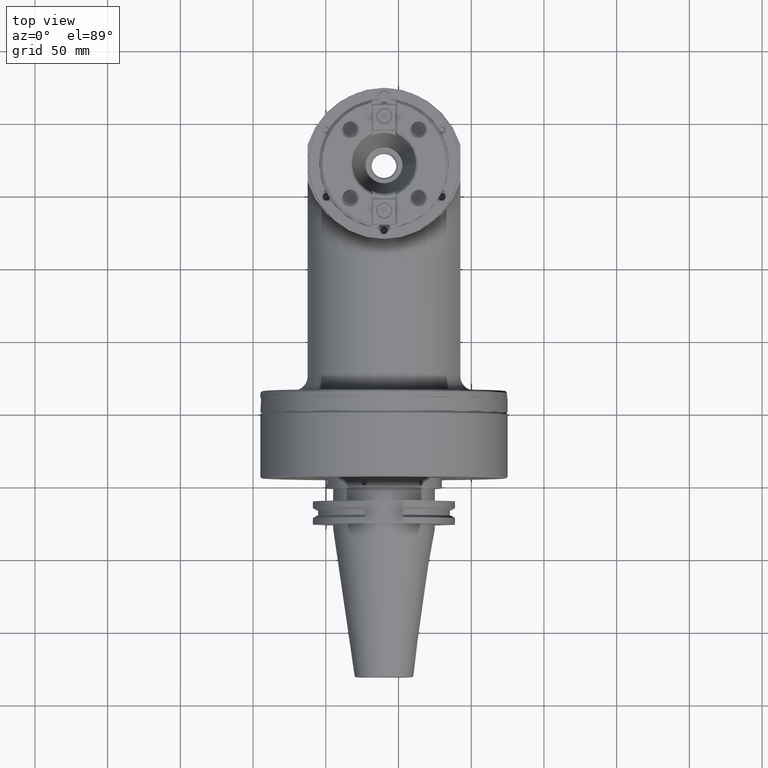
[diagram: clean part render]
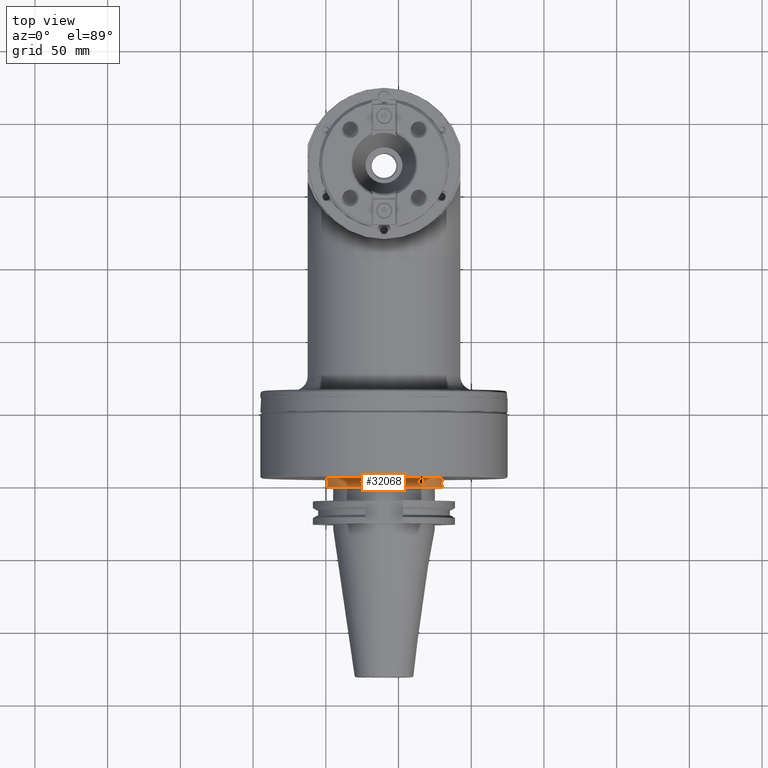
[diagram: same view with one face highlighted and labeled with its STEP entity id]
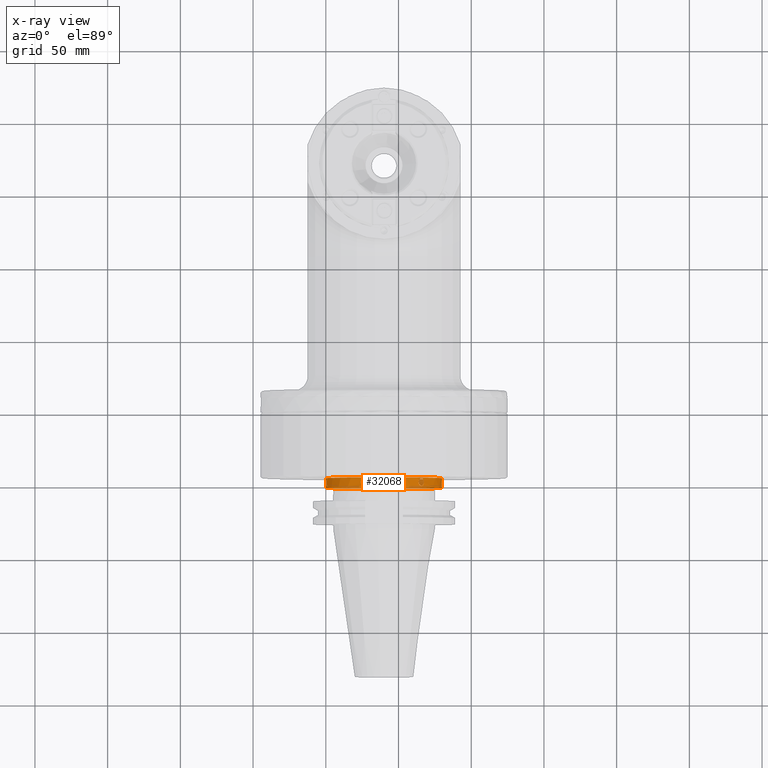
[diagram: x-ray of the same camera — body ghosted, the highlighted face saturated]
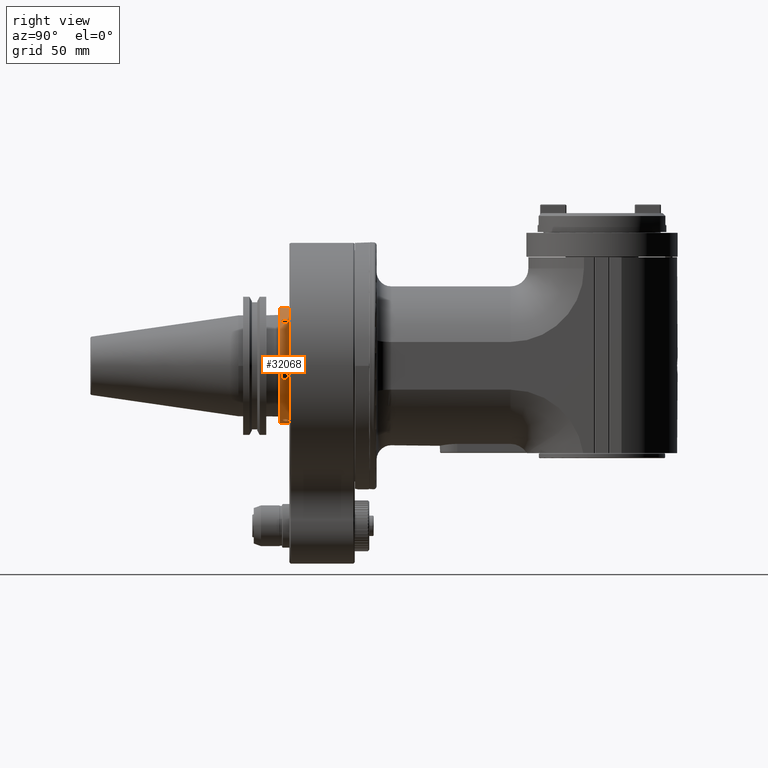
[diagram: same view with one face highlighted and labeled with its STEP entity id]
A machine part, top view. The second image highlights one B-rep face of the part: STEP entity #32068.
The next image is the same camera in x-ray: the body ghosted, the highlighted face saturated — about 16% of this face is hidden behind the body in this view.
A second angle (right view) of the same face is appended — the face is thin or edge-on in the first view.
In plain terms, the highlighted cylindrical surface (bore or boss wall) has radius 40 mm, axis along (-0, 1, -0).
Its self-contained STEP definition (entity closure, byte-faithful):
#568=B_SPLINE_CURVE_WITH_KNOTS('',3,(#63098,#63099,#63100,#63101,#63102,
#63103,#63104,#63105,#63106,#63107,#63108,#63109,#63110,#63111,#63112,#63113,
#63114,#63115),.UNSPECIFIED.,.F.,.F.,(4,2,2,2,2,2,2,2,4),(-0.742491984720188,
-0.649998053057273,-0.557504121394359,-0.464375056877228,-0.371245992360097,
-0.278116927842965,-0.184987863325834,-0.0924939316629168,0.),
 .UNSPECIFIED.);
#569=B_SPLINE_CURVE_WITH_KNOTS('',3,(#63116,#63117,#63118,#63119,#63120,
#63121,#63122,#63123,#63124,#63125,#63126,#63127,#63128,#63129,#63130,#63131,
#63132,#63133),.UNSPECIFIED.,.F.,.F.,(4,2,2,2,2,2,2,2,4),(0.,0.092493931662917,
0.184987863325834,0.278116927842966,0.371245992360097,0.464375056877228,
0.557504121394359,0.649998053057273,0.742491984720188),.UNSPECIFIED.);
#570=B_SPLINE_CURVE_WITH_KNOTS('',3,(#63136,#63137,#63138,#63139,#63140,
#63141,#63142,#63143,#63144,#63145,#63146,#63147,#63148,#63149,#63150,#63151,
#63152,#63153),.UNSPECIFIED.,.F.,.F.,(4,2,2,2,2,2,2,2,4),(-0.742491984721139,
-0.649998053058096,-0.557504121395052,-0.464375056877798,-0.371245992360543,
-0.278116927843296,-0.184987863326049,-0.0924939316630244,0.),
 .UNSPECIFIED.);
#571=B_SPLINE_CURVE_WITH_KNOTS('',3,(#63154,#63155,#63156,#63157,#63158,
#63159,#63160,#63161,#63162,#63163,#63164,#63165,#63166,#63167,#63168,#63169,
#63170,#63171),.UNSPECIFIED.,.F.,.F.,(4,2,2,2,2,2,2,2,4),(0.,0.0924939316630244,
0.184987863326049,0.278116927843296,0.371245992360543,0.464375056877797,
0.557504121395052,0.649998053058095,0.742491984721138),.UNSPECIFIED.);
#572=B_SPLINE_CURVE_WITH_KNOTS('',3,(#63174,#63175,#63176,#63177,#63178,
#63179,#63180,#63181,#63182,#63183,#63184,#63185,#63186,#63187,#63188,#63189,
#63190,#63191),.UNSPECIFIED.,.F.,.F.,(4,2,2,2,2,2,2,2,4),(-0.742491984721315,
-0.649998053058266,-0.557504121395217,-0.464375056877946,-0.371245992360675,
-0.2781169278434,-0.184987863326125,-0.0924939316630624,0.),
 .UNSPECIFIED.);
#573=B_SPLINE_CURVE_WITH_KNOTS('',3,(#63192,#63193,#63194,#63195,#63196,
#63197,#63198,#63199,#63200,#63201,#63202,#63203,#63204,#63205,#63206,#63207,
#63208,#63209),.UNSPECIFIED.,.F.,.F.,(4,2,2,2,2,2,2,2,4),(0.,0.0924939316630617,
0.184987863326124,0.278116927843399,0.371245992360674,0.464375056877945,
0.557504121395216,0.649998053058265,0.742491984721315),.UNSPECIFIED.);
#574=B_SPLINE_CURVE_WITH_KNOTS('',3,(#63212,#63213,#63214,#63215,#63216,
#63217,#63218,#63219,#63220,#63221,#63222,#63223,#63224,#63225,#63226,#63227,
#63228,#63229),.UNSPECIFIED.,.F.,.F.,(4,2,2,2,2,2,2,2,4),(-0.742491984720188,
-0.649998053057273,-0.557504121394359,-0.464375056877228,-0.371245992360097,
-0.278116927842965,-0.184987863325834,-0.0924939316629168,0.),
 .UNSPECIFIED.);
#575=B_SPLINE_CURVE_WITH_KNOTS('',3,(#63230,#63231,#63232,#63233,#63234,
#63235,#63236,#63237,#63238,#63239,#63240,#63241,#63242,#63243,#63244,#63245,
#63246,#63247),.UNSPECIFIED.,.F.,.F.,(4,2,2,2,2,2,2,2,4),(0.,0.092493931662917,
0.184987863325834,0.278116927842966,0.371245992360097,0.464375056877228,
0.557504121394359,0.649998053057273,0.742491984720188),.UNSPECIFIED.);
#576=B_SPLINE_CURVE_WITH_KNOTS('',3,(#63250,#63251,#63252,#63253,#63254,
#63255,#63256,#63257,#63258,#63259,#63260,#63261,#63262,#63263,#63264,#63265,
#63266,#63267),.UNSPECIFIED.,.F.,.F.,(4,2,2,2,2,2,2,2,4),(-0.742491984721315,
-0.649998053058266,-0.557504121395217,-0.464375056877946,-0.371245992360675,
-0.2781169278434,-0.184987863326125,-0.0924939316630624,0.),
 .UNSPECIFIED.);
#577=B_SPLINE_CURVE_WITH_KNOTS('',3,(#63268,#63269,#63270,#63271,#63272,
#63273,#63274,#63275,#63276,#63277,#63278,#63279,#63280,#63281,#63282,#63283,
#63284,#63285),.UNSPECIFIED.,.F.,.F.,(4,2,2,2,2,2,2,2,4),(0.,0.0924939316630617,
0.184987863326124,0.278116927843399,0.371245992360674,0.464375056877945,
0.557504121395216,0.649998053058265,0.742491984721315),.UNSPECIFIED.);
#578=B_SPLINE_CURVE_WITH_KNOTS('',3,(#63288,#63289,#63290,#63291,#63292,
#63293,#63294,#63295,#63296,#63297,#63298,#63299,#63300,#63301,#63302,#63303,
#63304,#63305),.UNSPECIFIED.,.F.,.F.,(4,2,2,2,2,2,2,2,4),(-0.742491984721139,
-0.649998053058096,-0.557504121395052,-0.464375056877798,-0.371245992360543,
-0.278116927843296,-0.184987863326049,-0.0924939316630244,0.),
 .UNSPECIFIED.);
#579=B_SPLINE_CURVE_WITH_KNOTS('',3,(#63306,#63307,#63308,#63309,#63310,
#63311,#63312,#63313,#63314,#63315,#63316,#63317,#63318,#63319,#63320,#63321,
#63322,#63323),.UNSPECIFIED.,.F.,.F.,(4,2,2,2,2,2,2,2,4),(0.,0.0924939316630244,
0.184987863326049,0.278116927843296,0.371245992360543,0.464375056877797,
0.557504121395052,0.649998053058095,0.742491984721138),.UNSPECIFIED.);
#914=CYLINDRICAL_SURFACE('',#35114,40.);
#1543=FACE_BOUND('',#10921,.T.);
#1544=FACE_BOUND('',#10922,.T.);
#1545=FACE_BOUND('',#10923,.T.);
#1546=FACE_BOUND('',#10924,.T.);
#1547=FACE_BOUND('',#10925,.T.);
#1548=FACE_BOUND('',#10926,.T.);
#4171=LINE('',#63092,#7082);
#7082=VECTOR('',#43506,40.);
#8900=FACE_OUTER_BOUND('',#10920,.T.);
#10920=EDGE_LOOP('',(#28285,#28286,#28287,#28288,#28289));
#10921=EDGE_LOOP('',(#28290,#28291));
#10922=EDGE_LOOP('',(#28292,#28293));
#10923=EDGE_LOOP('',(#28294,#28295));
#10924=EDGE_LOOP('',(#28296,#28297));
#10925=EDGE_LOOP('',(#28298,#28299));
#10926=EDGE_LOOP('',(#28300,#28301));
#12421=CIRCLE('',#35102,40.);
#12427=CIRCLE('',#35115,40.);
#12428=CIRCLE('',#35116,40.);
#15395=VERTEX_POINT('',#63062);
#15400=VERTEX_POINT('',#63091);
#15401=VERTEX_POINT('',#63093);
#15402=VERTEX_POINT('',#63096);
#15403=VERTEX_POINT('',#63097);
#15404=VERTEX_POINT('',#63134);
#15405=VERTEX_POINT('',#63135);
#15406=VERTEX_POINT('',#63172);
#15407=VERTEX_POINT('',#63173);
#15408=VERTEX_POINT('',#63210);
#15409=VERTEX_POINT('',#63211);
#15410=VERTEX_POINT('',#63248);
#15411=VERTEX_POINT('',#63249);
#15412=VERTEX_POINT('',#63286);
#15413=VERTEX_POINT('',#63287);
#19784=EDGE_CURVE('',#15395,#15395,#12421,.T.);
#19793=EDGE_CURVE('',#15395,#15400,#4171,.T.);
#19794=EDGE_CURVE('',#15400,#15401,#12427,.T.);
#19795=EDGE_CURVE('',#15401,#15400,#12428,.T.);
#19796=EDGE_CURVE('',#15402,#15403,#568,.T.);
#19797=EDGE_CURVE('',#15403,#15402,#569,.T.);
#19798=EDGE_CURVE('',#15404,#15405,#570,.T.);
#19799=EDGE_CURVE('',#15405,#15404,#571,.T.);
#19800=EDGE_CURVE('',#15406,#15407,#572,.T.);
#19801=EDGE_CURVE('',#15407,#15406,#573,.T.);
#19802=EDGE_CURVE('',#15408,#15409,#574,.T.);
#19803=EDGE_CURVE('',#15409,#15408,#575,.T.);
#19804=EDGE_CURVE('',#15410,#15411,#576,.T.);
#19805=EDGE_CURVE('',#15411,#15410,#577,.T.);
#19806=EDGE_CURVE('',#15412,#15413,#578,.T.);
#19807=EDGE_CURVE('',#15413,#15412,#579,.T.);
#28285=ORIENTED_EDGE('',*,*,#19784,.F.);
#28286=ORIENTED_EDGE('',*,*,#19793,.T.);
#28287=ORIENTED_EDGE('',*,*,#19794,.T.);
#28288=ORIENTED_EDGE('',*,*,#19795,.T.);
#28289=ORIENTED_EDGE('',*,*,#19793,.F.);
#28290=ORIENTED_EDGE('',*,*,#19796,.F.);
#28291=ORIENTED_EDGE('',*,*,#19797,.F.);
#28292=ORIENTED_EDGE('',*,*,#19798,.F.);
#28293=ORIENTED_EDGE('',*,*,#19799,.F.);
#28294=ORIENTED_EDGE('',*,*,#19800,.F.);
#28295=ORIENTED_EDGE('',*,*,#19801,.F.);
#28296=ORIENTED_EDGE('',*,*,#19802,.F.);
#28297=ORIENTED_EDGE('',*,*,#19803,.F.);
#28298=ORIENTED_EDGE('',*,*,#19804,.F.);
#28299=ORIENTED_EDGE('',*,*,#19805,.F.);
#28300=ORIENTED_EDGE('',*,*,#19806,.F.);
#28301=ORIENTED_EDGE('',*,*,#19807,.F.);
#32068=ADVANCED_FACE('',(#8900,#1543,#1544,#1545,#1546,#1547,#1548),#914,
 .T.);
#35102=AXIS2_PLACEMENT_3D('',#63063,#43479,#43480);
#35114=AXIS2_PLACEMENT_3D('',#63090,#43504,#43505);
#35115=AXIS2_PLACEMENT_3D('',#63094,#43507,#43508);
#35116=AXIS2_PLACEMENT_3D('',#63095,#43509,#43510);
#43479=DIRECTION('center_axis',(0.,1.,0.));
#43480=DIRECTION('ref_axis',(1.,0.,0.));
#43504=DIRECTION('center_axis',(0.,1.,0.));
#43505=DIRECTION('ref_axis',(1.,0.,0.));
#43506=DIRECTION('',(0.,-1.,0.));
#43507=DIRECTION('center_axis',(0.,1.,0.));
#43508=DIRECTION('ref_axis',(1.,0.,0.));
#43509=DIRECTION('center_axis',(0.,1.,0.));
#43510=DIRECTION('ref_axis',(1.,0.,0.));
#63062=CARTESIAN_POINT('',(-40.,-45.,4.89858719658941E-15));
#63063=CARTESIAN_POINT('Origin',(0.,-45.,0.));
#63090=CARTESIAN_POINT('Origin',(0.,-52.95,0.));
#63091=CARTESIAN_POINT('',(-40.,-51.60002084394,4.89858719658941E-15));
#63092=CARTESIAN_POINT('',(-40.,-52.95,4.89858719658941E-15));
#63093=CARTESIAN_POINT('',(2.51836680647089E-13,-51.6000208439394,39.9999999999999));
#63094=CARTESIAN_POINT('Origin',(0.,-51.60002084394,0.));
#63095=CARTESIAN_POINT('Origin',(0.,-51.60002084394,0.));
#63096=CARTESIAN_POINT('',(-38.89844204083,-48.1,9.322618022667));
#63097=CARTESIAN_POINT('',(-39.7411020981145,-48.1,4.54365535964566));
#63098=CARTESIAN_POINT('Ctrl Pts',(-38.8984420408263,-48.1,9.32261802266267));
#63099=CARTESIAN_POINT('Ctrl Pts',(-38.8984420408263,-47.791686894457,9.32261802266267));
#63100=CARTESIAN_POINT('Ctrl Pts',(-38.9122969841361,-47.4618745273723,
9.26540609676041));
#63101=CARTESIAN_POINT('Ctrl Pts',(-38.9675764213949,-46.8518373755174,
9.0300938509991));
#63102=CARTESIAN_POINT('Ctrl Pts',(-39.0088281459365,-46.5716224878712,
8.85192732282894));
#63103=CARTESIAN_POINT('Ctrl Pts',(-39.1011245134172,-46.1239232905301,
8.43492599664727));
#63104=CARTESIAN_POINT('Ctrl Pts',(-39.1584458036527,-45.9272221075732,
8.16744430163333));
#63105=CARTESIAN_POINT('Ctrl Pts',(-39.277190395584,-45.6652237176588,7.57583915579677));
#63106=CARTESIAN_POINT('Ctrl Pts',(-39.338404479351,-45.6000000000041,7.25164118923415));
#63107=CARTESIAN_POINT('Ctrl Pts',(-39.4462157616258,-45.6000000000041,
6.64021302411918));
#63108=CARTESIAN_POINT('Ctrl Pts',(-39.4995755738114,-45.6652237176588,
6.31463013756295));
#63109=CARTESIAN_POINT('Ctrl Pts',(-39.5903330337865,-45.9272221075731,
5.71809010524986));
#63110=CARTESIAN_POINT('Ctrl Pts',(-39.627952768004,-46.12392329053,5.44713449434798));
#63111=CARTESIAN_POINT('Ctrl Pts',(-39.6838454059047,-46.5716224878712,
5.02371420844293));
#63112=CARTESIAN_POINT('Ctrl Pts',(-39.7060180062588,-46.8518373755174,
4.84218351591022));
#63113=CARTESIAN_POINT('Ctrl Pts',(-39.7345538550071,-47.4618745273724,
4.60215565393356));
#63114=CARTESIAN_POINT('Ctrl Pts',(-39.7411020981145,-47.791686894457,4.54365535964566));
#63115=CARTESIAN_POINT('Ctrl Pts',(-39.7411020981145,-48.1,4.54365535964566));
#63116=CARTESIAN_POINT('Ctrl Pts',(-39.7411020981145,-48.1,4.54365535964565));
#63117=CARTESIAN_POINT('Ctrl Pts',(-39.7411020981145,-48.4083131055431,
4.54365535964565));
#63118=CARTESIAN_POINT('Ctrl Pts',(-39.7345538550071,-48.7381254726277,
4.60215565393356));
#63119=CARTESIAN_POINT('Ctrl Pts',(-39.7060180062588,-49.3481626244827,
4.84218351591021));
#63120=CARTESIAN_POINT('Ctrl Pts',(-39.6838454059047,-49.6283775121289,
5.02371420844293));
#63121=CARTESIAN_POINT('Ctrl Pts',(-39.627952768004,-50.07607670947,5.44713449434798));
#63122=CARTESIAN_POINT('Ctrl Pts',(-39.5903330337865,-50.2727778924269,
5.71809010524986));
#63123=CARTESIAN_POINT('Ctrl Pts',(-39.4995755738114,-50.5347762823412,
6.31463013756296));
#63124=CARTESIAN_POINT('Ctrl Pts',(-39.4462157616258,-50.5999999999959,
6.64021302411919));
#63125=CARTESIAN_POINT('Ctrl Pts',(-39.338404479351,-50.5999999999959,7.25164118923415));
#63126=CARTESIAN_POINT('Ctrl Pts',(-39.277190395584,-50.5347762823412,7.57583915579677));
#63127=CARTESIAN_POINT('Ctrl Pts',(-39.1584458036527,-50.2727778924269,
8.16744430163333));
#63128=CARTESIAN_POINT('Ctrl Pts',(-39.1011245134172,-50.07607670947,8.43492599664727));
#63129=CARTESIAN_POINT('Ctrl Pts',(-39.0088281459365,-49.6283775121288,
8.85192732282894));
#63130=CARTESIAN_POINT('Ctrl Pts',(-38.9675764213949,-49.3481626244826,
9.03009385099911));
#63131=CARTESIAN_POINT('Ctrl Pts',(-38.9122969841361,-48.7381254726276,
9.2654060967604));
#63132=CARTESIAN_POINT('Ctrl Pts',(-38.8984420408263,-48.4083131055431,
9.32261802266266));
#63133=CARTESIAN_POINT('Ctrl Pts',(-38.8984420408263,-48.1,9.32261802266266));
#63134=CARTESIAN_POINT('',(27.52284505782,-48.1,29.02572996366));
#63135=CARTESIAN_POINT('',(23.8054720165449,-48.1,32.1449763115405));
#63136=CARTESIAN_POINT('Ctrl Pts',(27.522845057816,-48.1,29.0257299636625));
#63137=CARTESIAN_POINT('Ctrl Pts',(27.522845057816,-47.7916868944565,29.0257299636625));
#63138=CARTESIAN_POINT('Ctrl Pts',(27.48022554824,-47.4618745273714,29.066334659488));
#63139=CARTESIAN_POINT('Ctrl Pts',(27.3040788842182,-46.8518373755156,29.2318641793418));
#63140=CARTESIAN_POINT('Ctrl Pts',(27.1704080069894,-46.5716224878691,29.3566724848301));
#63141=CARTESIAN_POINT('Ctrl Pts',(26.8554224488442,-46.1239232905273,29.6451041468366));
#63142=CARTESIAN_POINT('Ctrl Pts',(26.6524371510322,-45.9272221075702,29.8284866878654));
#63143=CARTESIAN_POINT('Ctrl Pts',(26.1994643616932,-45.6652237176556,30.2271250939587));
#63144=CARTESIAN_POINT('Ctrl Pts',(25.9493077286778,-45.6000000000008,30.4422370288519));
#63145=CARTESIAN_POINT('Ctrl Pts',(25.4737010462357,-45.6000000000009,30.8413184206744));
#63146=CARTESIAN_POINT('Ctrl Pts',(25.218417901533,-45.6652237176557,31.0503208168466));
#63147=CARTESIAN_POINT('Ctrl Pts',(24.7471778091624,-45.9272221075705,31.427189098925));
#63148=CARTESIAN_POINT('Ctrl Pts',(24.5313332339319,-46.1239232905276,31.5952465498919));
#63149=CARTESIAN_POINT('Ctrl Pts',(24.1925868288104,-46.5716224878693,31.8553611371512));
#63150=CARTESIAN_POINT('Ctrl Pts',(24.0464629376873,-46.8518373755159,31.9653285185923));
#63151=CARTESIAN_POINT('Ctrl Pts',(23.8528606359734,-47.4618745273716,32.1100552195153));
#63152=CARTESIAN_POINT('Ctrl Pts',(23.8054720165449,-47.7916868944566,32.1449763115405));
#63153=CARTESIAN_POINT('Ctrl Pts',(23.8054720165449,-48.1,32.1449763115405));
#63154=CARTESIAN_POINT('Ctrl Pts',(23.8054720165449,-48.1,32.1449763115405));
#63155=CARTESIAN_POINT('Ctrl Pts',(23.8054720165449,-48.4083131055434,32.1449763115405));
#63156=CARTESIAN_POINT('Ctrl Pts',(23.8528606359734,-48.7381254726284,32.1100552195153));
#63157=CARTESIAN_POINT('Ctrl Pts',(24.0464629376873,-49.3481626244841,31.9653285185923));
#63158=CARTESIAN_POINT('Ctrl Pts',(24.1925868288104,-49.6283775121307,31.8553611371512));
#63159=CARTESIAN_POINT('Ctrl Pts',(24.5313332339319,-50.0760767094724,31.5952465498919));
#63160=CARTESIAN_POINT('Ctrl Pts',(24.7471778091624,-50.2727778924296,31.4271890989249));
#63161=CARTESIAN_POINT('Ctrl Pts',(25.218417901533,-50.5347762823443,31.0503208168466));
#63162=CARTESIAN_POINT('Ctrl Pts',(25.4737010462357,-50.5999999999991,30.8413184206744));
#63163=CARTESIAN_POINT('Ctrl Pts',(25.9493077286778,-50.5999999999992,30.4422370288519));
#63164=CARTESIAN_POINT('Ctrl Pts',(26.1994643616932,-50.5347762823445,30.2271250939587));
#63165=CARTESIAN_POINT('Ctrl Pts',(26.6524371510322,-50.2727778924298,29.8284866878654));
#63166=CARTESIAN_POINT('Ctrl Pts',(26.8554224488442,-50.0760767094727,29.6451041468366));
#63167=CARTESIAN_POINT('Ctrl Pts',(27.1704080069894,-49.6283775121309,29.3566724848301));
#63168=CARTESIAN_POINT('Ctrl Pts',(27.3040788842183,-49.3481626244844,29.2318641793418));
#63169=CARTESIAN_POINT('Ctrl Pts',(27.48022554824,-48.7381254726285,29.066334659488));
#63170=CARTESIAN_POINT('Ctrl Pts',(27.522845057816,-48.4083131055435,29.0257299636625));
#63171=CARTESIAN_POINT('Ctrl Pts',(27.522845057816,-48.1,29.0257299636625));
#63172=CARTESIAN_POINT('',(-11.375596983,-48.1,38.34834798632));
#63173=CARTESIAN_POINT('',(-15.9356300815641,-48.1,36.6886316711805));
#63174=CARTESIAN_POINT('Ctrl Pts',(-11.375596983003,-48.1,38.3483479863252));
#63175=CARTESIAN_POINT('Ctrl Pts',(-11.375596983003,-47.7916868944565,38.3483479863252));
#63176=CARTESIAN_POINT('Ctrl Pts',(-11.4320714358888,-47.4618745273714,
38.3317407562483));
#63177=CARTESIAN_POINT('Ctrl Pts',(-11.6634975371694,-46.8518373755155,
38.2619580303406));
#63178=CARTESIAN_POINT('Ctrl Pts',(-11.8384201389399,-46.5716224878689,
38.2085998076584));
#63179=CARTESIAN_POINT('Ctrl Pts',(-12.2457020645659,-46.1239232905271,
38.0800301434828));
#63180=CARTESIAN_POINT('Ctrl Pts',(-12.5060086526134,-45.9272221075699,
37.9959309894973));
#63181=CARTESIAN_POINT('Ctrl Pts',(-13.077726033884,-45.6652237176551,37.8029642497534));
#63182=CARTESIAN_POINT('Ctrl Pts',(-13.3890967506665,-45.6000000000003,
37.6938782180835));
#63183=CARTESIAN_POINT('Ctrl Pts',(-13.9725147153837,-45.6000000000002,
37.4815314447903));
#63184=CARTESIAN_POINT('Ctrl Pts',(-14.2811576722721,-45.665223717655,37.364950954406));
#63185=CARTESIAN_POINT('Ctrl Pts',(-14.8431552246181,-45.9272221075697,
37.1452792041705));
#63186=CARTESIAN_POINT('Ctrl Pts',(-15.0966195340661,-46.1239232905269,
37.0423810442353));
#63187=CARTESIAN_POINT('Ctrl Pts',(-15.4912585770885,-46.5716224878688,
36.879075345589));
#63188=CARTESIAN_POINT('Ctrl Pts',(-15.6595550685658,-46.8518373755154,
36.8075120344972));
#63189=CARTESIAN_POINT('Ctrl Pts',(-15.8816932190281,-47.4618745273714,
36.7122108734433));
#63190=CARTESIAN_POINT('Ctrl Pts',(-15.9356300815641,-47.7916868944565,
36.6886316711805));
#63191=CARTESIAN_POINT('Ctrl Pts',(-15.9356300815641,-48.1,36.6886316711805));
#63192=CARTESIAN_POINT('Ctrl Pts',(-15.9356300815641,-48.1,36.6886316711805));
#63193=CARTESIAN_POINT('Ctrl Pts',(-15.9356300815641,-48.4083131055435,
36.6886316711805));
#63194=CARTESIAN_POINT('Ctrl Pts',(-15.8816932190281,-48.7381254726287,
36.7122108734433));
#63195=CARTESIAN_POINT('Ctrl Pts',(-15.6595550685658,-49.3481626244846,
36.8075120344972));
#63196=CARTESIAN_POINT('Ctrl Pts',(-15.4912585770885,-49.6283775121313,
36.8790753455891));
#63197=CARTESIAN_POINT('Ctrl Pts',(-15.0966195340661,-50.0760767094731,
37.0423810442353));
#63198=CARTESIAN_POINT('Ctrl Pts',(-14.8431552246181,-50.2727778924303,
37.1452792041705));
#63199=CARTESIAN_POINT('Ctrl Pts',(-14.2811576722721,-50.534776282345,37.364950954406));
#63200=CARTESIAN_POINT('Ctrl Pts',(-13.9725147153837,-50.5999999999998,
37.4815314447903));
#63201=CARTESIAN_POINT('Ctrl Pts',(-13.3890967506665,-50.5999999999997,
37.6938782180835));
#63202=CARTESIAN_POINT('Ctrl Pts',(-13.077726033884,-50.5347762823449,37.8029642497534));
#63203=CARTESIAN_POINT('Ctrl Pts',(-12.5060086526134,-50.2727778924301,
37.9959309894973));
#63204=CARTESIAN_POINT('Ctrl Pts',(-12.2457020645659,-50.0760767094729,
38.0800301434828));
#63205=CARTESIAN_POINT('Ctrl Pts',(-11.8384201389399,-49.6283775121311,
38.2085998076584));
#63206=CARTESIAN_POINT('Ctrl Pts',(-11.6634975371694,-49.3481626244845,
38.2619580303406));
#63207=CARTESIAN_POINT('Ctrl Pts',(-11.4320714358888,-48.7381254726286,
38.3317407562483));
#63208=CARTESIAN_POINT('Ctrl Pts',(-11.375596983003,-48.4083131055435,38.3483479863252));
#63209=CARTESIAN_POINT('Ctrl Pts',(-11.375596983003,-48.1,38.3483479863252));
#63210=CARTESIAN_POINT('',(38.89844204083,-48.1,-9.322618022667));
#63211=CARTESIAN_POINT('',(39.7411020981145,-48.1,-4.54365535964566));
#63212=CARTESIAN_POINT('Ctrl Pts',(38.8984420408263,-48.1,-9.32261802266267));
#63213=CARTESIAN_POINT('Ctrl Pts',(38.8984420408263,-47.791686894457,-9.32261802266267));
#63214=CARTESIAN_POINT('Ctrl Pts',(38.9122969841361,-47.4618745273723,-9.26540609676041));
#63215=CARTESIAN_POINT('Ctrl Pts',(38.9675764213949,-46.8518373755174,-9.0300938509991));
#63216=CARTESIAN_POINT('Ctrl Pts',(39.0088281459365,-46.5716224878712,-8.85192732282894));
#63217=CARTESIAN_POINT('Ctrl Pts',(39.1011245134172,-46.1239232905301,-8.43492599664727));
#63218=CARTESIAN_POINT('Ctrl Pts',(39.1584458036527,-45.9272221075732,-8.16744430163333));
#63219=CARTESIAN_POINT('Ctrl Pts',(39.277190395584,-45.6652237176588,-7.57583915579677));
#63220=CARTESIAN_POINT('Ctrl Pts',(39.338404479351,-45.6000000000041,-7.25164118923415));
#63221=CARTESIAN_POINT('Ctrl Pts',(39.4462157616258,-45.6000000000041,-6.64021302411918));
#63222=CARTESIAN_POINT('Ctrl Pts',(39.4995755738114,-45.6652237176588,-6.31463013756295));
#63223=CARTESIAN_POINT('Ctrl Pts',(39.5903330337865,-45.9272221075731,-5.71809010524986));
#63224=CARTESIAN_POINT('Ctrl Pts',(39.627952768004,-46.12392329053,-5.44713449434798));
#63225=CARTESIAN_POINT('Ctrl Pts',(39.6838454059047,-46.5716224878712,-5.02371420844293));
#63226=CARTESIAN_POINT('Ctrl Pts',(39.7060180062588,-46.8518373755174,-4.84218351591022));
#63227=CARTESIAN_POINT('Ctrl Pts',(39.7345538550071,-47.4618745273724,-4.60215565393356));
#63228=CARTESIAN_POINT('Ctrl Pts',(39.7411020981145,-47.791686894457,-4.54365535964566));
#63229=CARTESIAN_POINT('Ctrl Pts',(39.7411020981145,-48.1,-4.54365535964566));
#63230=CARTESIAN_POINT('Ctrl Pts',(39.7411020981145,-48.1,-4.54365535964565));
#63231=CARTESIAN_POINT('Ctrl Pts',(39.7411020981145,-48.4083131055431,-4.54365535964565));
#63232=CARTESIAN_POINT('Ctrl Pts',(39.7345538550071,-48.7381254726277,-4.60215565393356));
#63233=CARTESIAN_POINT('Ctrl Pts',(39.7060180062588,-49.3481626244827,-4.84218351591021));
#63234=CARTESIAN_POINT('Ctrl Pts',(39.6838454059047,-49.6283775121289,-5.02371420844293));
#63235=CARTESIAN_POINT('Ctrl Pts',(39.627952768004,-50.07607670947,-5.44713449434798));
#63236=CARTESIAN_POINT('Ctrl Pts',(39.5903330337865,-50.2727778924269,-5.71809010524986));
#63237=CARTESIAN_POINT('Ctrl Pts',(39.4995755738114,-50.5347762823412,-6.31463013756296));
#63238=CARTESIAN_POINT('Ctrl Pts',(39.4462157616258,-50.5999999999959,-6.64021302411919));
#63239=CARTESIAN_POINT('Ctrl Pts',(39.338404479351,-50.5999999999959,-7.25164118923415));
#63240=CARTESIAN_POINT('Ctrl Pts',(39.277190395584,-50.5347762823412,-7.57583915579677));
#63241=CARTESIAN_POINT('Ctrl Pts',(39.1584458036527,-50.2727778924269,-8.16744430163333));
#63242=CARTESIAN_POINT('Ctrl Pts',(39.1011245134172,-50.07607670947,-8.43492599664727));
#63243=CARTESIAN_POINT('Ctrl Pts',(39.0088281459365,-49.6283775121288,-8.85192732282894));
#63244=CARTESIAN_POINT('Ctrl Pts',(38.9675764213949,-49.3481626244826,-9.03009385099911));
#63245=CARTESIAN_POINT('Ctrl Pts',(38.9122969841361,-48.7381254726276,-9.2654060967604));
#63246=CARTESIAN_POINT('Ctrl Pts',(38.8984420408263,-48.4083131055431,-9.32261802266266));
#63247=CARTESIAN_POINT('Ctrl Pts',(38.8984420408263,-48.1,-9.32261802266266));
#63248=CARTESIAN_POINT('',(11.375596983,-48.1,-38.34834798632));
#63249=CARTESIAN_POINT('',(15.9356300815641,-48.1,-36.6886316711805));
#63250=CARTESIAN_POINT('Ctrl Pts',(11.375596983003,-48.1,-38.3483479863252));
#63251=CARTESIAN_POINT('Ctrl Pts',(11.375596983003,-47.7916868944565,-38.3483479863252));
#63252=CARTESIAN_POINT('Ctrl Pts',(11.4320714358888,-47.4618745273714,-38.3317407562483));
#63253=CARTESIAN_POINT('Ctrl Pts',(11.6634975371694,-46.8518373755155,-38.2619580303406));
#63254=CARTESIAN_POINT('Ctrl Pts',(11.8384201389399,-46.5716224878689,-38.2085998076584));
#63255=CARTESIAN_POINT('Ctrl Pts',(12.2457020645659,-46.1239232905271,-38.0800301434828));
#63256=CARTESIAN_POINT('Ctrl Pts',(12.5060086526134,-45.9272221075699,-37.9959309894973));
#63257=CARTESIAN_POINT('Ctrl Pts',(13.077726033884,-45.6652237176551,-37.8029642497534));
#63258=CARTESIAN_POINT('Ctrl Pts',(13.3890967506665,-45.6000000000003,-37.6938782180835));
#63259=CARTESIAN_POINT('Ctrl Pts',(13.9725147153837,-45.6000000000002,-37.4815314447903));
#63260=CARTESIAN_POINT('Ctrl Pts',(14.2811576722721,-45.665223717655,-37.364950954406));
#63261=CARTESIAN_POINT('Ctrl Pts',(14.8431552246181,-45.9272221075697,-37.1452792041705));
#63262=CARTESIAN_POINT('Ctrl Pts',(15.0966195340661,-46.1239232905269,-37.0423810442353));
#63263=CARTESIAN_POINT('Ctrl Pts',(15.4912585770885,-46.5716224878688,-36.879075345589));
#63264=CARTESIAN_POINT('Ctrl Pts',(15.6595550685658,-46.8518373755154,-36.8075120344972));
#63265=CARTESIAN_POINT('Ctrl Pts',(15.8816932190281,-47.4618745273714,-36.7122108734433));
#63266=CARTESIAN_POINT('Ctrl Pts',(15.9356300815641,-47.7916868944565,-36.6886316711805));
#63267=CARTESIAN_POINT('Ctrl Pts',(15.9356300815641,-48.1,-36.6886316711805));
#63268=CARTESIAN_POINT('Ctrl Pts',(15.9356300815641,-48.1,-36.6886316711805));
#63269=CARTESIAN_POINT('Ctrl Pts',(15.9356300815641,-48.4083131055435,-36.6886316711805));
#63270=CARTESIAN_POINT('Ctrl Pts',(15.8816932190281,-48.7381254726287,-36.7122108734433));
#63271=CARTESIAN_POINT('Ctrl Pts',(15.6595550685658,-49.3481626244846,-36.8075120344972));
#63272=CARTESIAN_POINT('Ctrl Pts',(15.4912585770885,-49.6283775121313,-36.8790753455891));
#63273=CARTESIAN_POINT('Ctrl Pts',(15.0966195340661,-50.0760767094731,-37.0423810442353));
#63274=CARTESIAN_POINT('Ctrl Pts',(14.8431552246181,-50.2727778924303,-37.1452792041705));
#63275=CARTESIAN_POINT('Ctrl Pts',(14.2811576722721,-50.534776282345,-37.364950954406));
#63276=CARTESIAN_POINT('Ctrl Pts',(13.9725147153837,-50.5999999999998,-37.4815314447903));
#63277=CARTESIAN_POINT('Ctrl Pts',(13.3890967506665,-50.5999999999997,-37.6938782180835));
#63278=CARTESIAN_POINT('Ctrl Pts',(13.077726033884,-50.5347762823449,-37.8029642497534));
#63279=CARTESIAN_POINT('Ctrl Pts',(12.5060086526134,-50.2727778924301,-37.9959309894973));
#63280=CARTESIAN_POINT('Ctrl Pts',(12.2457020645659,-50.0760767094729,-38.0800301434828));
#63281=CARTESIAN_POINT('Ctrl Pts',(11.8384201389399,-49.6283775121311,-38.2085998076584));
#63282=CARTESIAN_POINT('Ctrl Pts',(11.6634975371694,-49.3481626244845,-38.2619580303406));
#63283=CARTESIAN_POINT('Ctrl Pts',(11.4320714358888,-48.7381254726286,-38.3317407562483));
#63284=CARTESIAN_POINT('Ctrl Pts',(11.375596983003,-48.4083131055435,-38.3483479863252));
#63285=CARTESIAN_POINT('Ctrl Pts',(11.375596983003,-48.1,-38.3483479863252));
#63286=CARTESIAN_POINT('',(-27.52284505782,-48.1,-29.02572996366));
#63287=CARTESIAN_POINT('',(-23.8054720165449,-48.1,-32.1449763115405));
#63288=CARTESIAN_POINT('Ctrl Pts',(-27.522845057816,-48.1,-29.0257299636625));
#63289=CARTESIAN_POINT('Ctrl Pts',(-27.522845057816,-47.7916868944565,-29.0257299636625));
#63290=CARTESIAN_POINT('Ctrl Pts',(-27.48022554824,-47.4618745273714,-29.066334659488));
#63291=CARTESIAN_POINT('Ctrl Pts',(-27.3040788842182,-46.8518373755156,
-29.2318641793418));
#63292=CARTESIAN_POINT('Ctrl Pts',(-27.1704080069894,-46.5716224878691,
-29.3566724848301));
#63293=CARTESIAN_POINT('Ctrl Pts',(-26.8554224488442,-46.1239232905273,
-29.6451041468366));
#63294=CARTESIAN_POINT('Ctrl Pts',(-26.6524371510322,-45.9272221075702,
-29.8284866878654));
#63295=CARTESIAN_POINT('Ctrl Pts',(-26.1994643616932,-45.6652237176556,
-30.2271250939587));
#63296=CARTESIAN_POINT('Ctrl Pts',(-25.9493077286778,-45.6000000000008,
-30.4422370288519));
#63297=CARTESIAN_POINT('Ctrl Pts',(-25.4737010462357,-45.6000000000009,
-30.8413184206744));
#63298=CARTESIAN_POINT('Ctrl Pts',(-25.218417901533,-45.6652237176557,-31.0503208168466));
#63299=CARTESIAN_POINT('Ctrl Pts',(-24.7471778091624,-45.9272221075705,
-31.427189098925));
#63300=CARTESIAN_POINT('Ctrl Pts',(-24.5313332339319,-46.1239232905276,
-31.5952465498919));
#63301=CARTESIAN_POINT('Ctrl Pts',(-24.1925868288104,-46.5716224878693,
-31.8553611371512));
#63302=CARTESIAN_POINT('Ctrl Pts',(-24.0464629376873,-46.8518373755159,
-31.9653285185923));
#63303=CARTESIAN_POINT('Ctrl Pts',(-23.8528606359734,-47.4618745273716,
-32.1100552195153));
#63304=CARTESIAN_POINT('Ctrl Pts',(-23.8054720165449,-47.7916868944566,
-32.1449763115405));
#63305=CARTESIAN_POINT('Ctrl Pts',(-23.8054720165449,-48.1,-32.1449763115405));
#63306=CARTESIAN_POINT('Ctrl Pts',(-23.8054720165449,-48.1,-32.1449763115405));
#63307=CARTESIAN_POINT('Ctrl Pts',(-23.8054720165449,-48.4083131055434,
-32.1449763115405));
#63308=CARTESIAN_POINT('Ctrl Pts',(-23.8528606359734,-48.7381254726284,
-32.1100552195153));
#63309=CARTESIAN_POINT('Ctrl Pts',(-24.0464629376873,-49.3481626244841,
-31.9653285185923));
#63310=CARTESIAN_POINT('Ctrl Pts',(-24.1925868288104,-49.6283775121307,
-31.8553611371512));
#63311=CARTESIAN_POINT('Ctrl Pts',(-24.5313332339319,-50.0760767094724,
-31.5952465498919));
#63312=CARTESIAN_POINT('Ctrl Pts',(-24.7471778091624,-50.2727778924296,
-31.4271890989249));
#63313=CARTESIAN_POINT('Ctrl Pts',(-25.218417901533,-50.5347762823443,-31.0503208168466));
#63314=CARTESIAN_POINT('Ctrl Pts',(-25.4737010462357,-50.5999999999991,
-30.8413184206744));
#63315=CARTESIAN_POINT('Ctrl Pts',(-25.9493077286778,-50.5999999999992,
-30.4422370288519));
#63316=CARTESIAN_POINT('Ctrl Pts',(-26.1994643616932,-50.5347762823445,
-30.2271250939587));
#63317=CARTESIAN_POINT('Ctrl Pts',(-26.6524371510322,-50.2727778924298,
-29.8284866878654));
#63318=CARTESIAN_POINT('Ctrl Pts',(-26.8554224488442,-50.0760767094727,
-29.6451041468366));
#63319=CARTESIAN_POINT('Ctrl Pts',(-27.1704080069894,-49.6283775121309,
-29.3566724848301));
#63320=CARTESIAN_POINT('Ctrl Pts',(-27.3040788842183,-49.3481626244844,
-29.2318641793418));
#63321=CARTESIAN_POINT('Ctrl Pts',(-27.48022554824,-48.7381254726285,-29.066334659488));
#63322=CARTESIAN_POINT('Ctrl Pts',(-27.522845057816,-48.4083131055435,-29.0257299636625));
#63323=CARTESIAN_POINT('Ctrl Pts',(-27.522845057816,-48.1,-29.0257299636625));